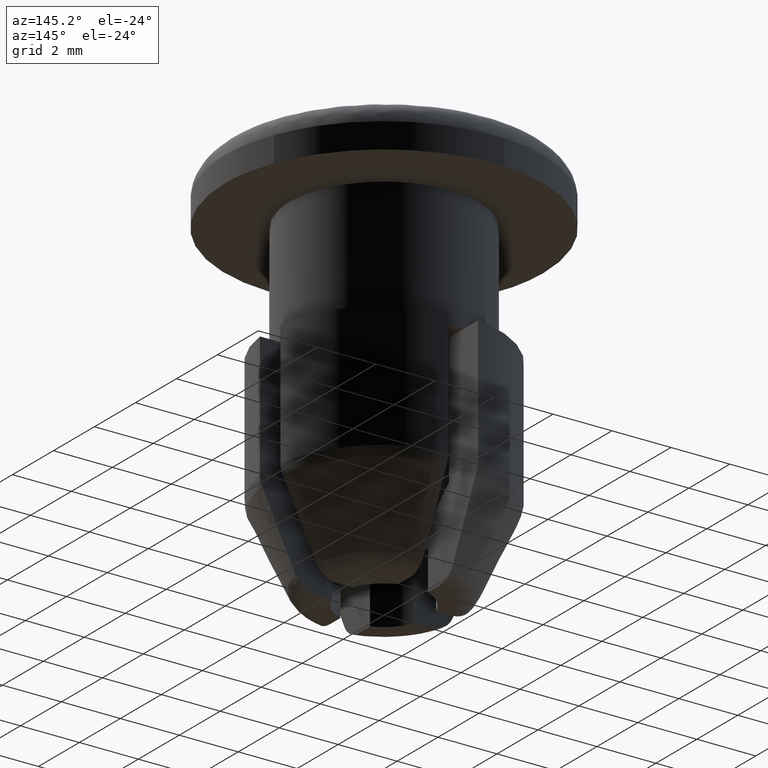
[diagram: clean part render]
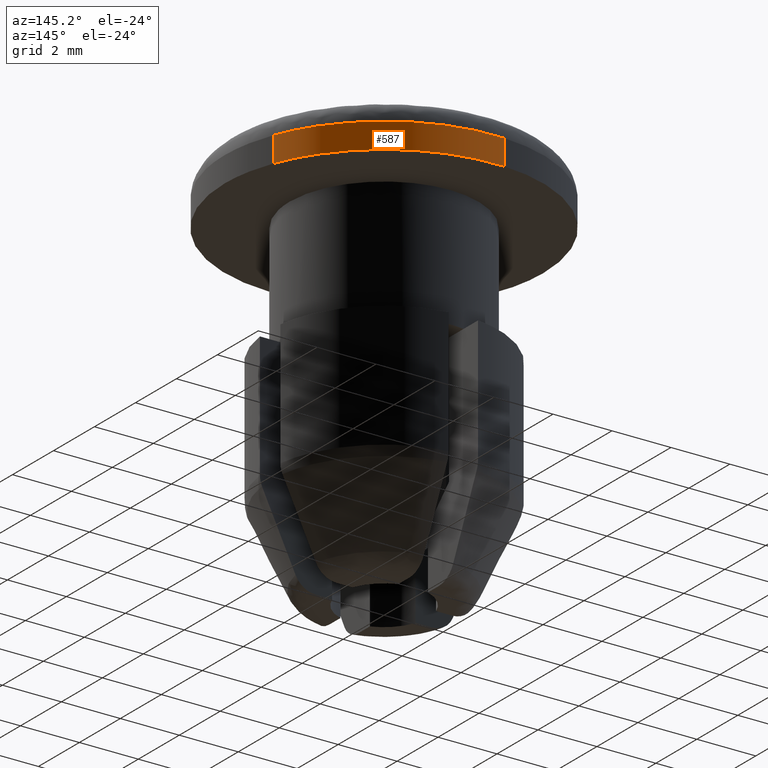
[diagram: same view with one face highlighted and labeled with its STEP entity id]
A machine part, auxiliary view. The second image highlights one B-rep face of the part: STEP entity #587.
In plain terms, the highlighted face is a freeform B-spline surface patch.
Its self-contained STEP definition (entity closure, byte-faithful):
#398=CARTESIAN_POINT('',(5.055175482556152,1.898736643287578,-2.000000000000003));
#399=VERTEX_POINT('',#398);
#415=CARTESIAN_POINT('',(5.055175480615818,1.898736648453501,-1.139000000000000));
#416=VERTEX_POINT('',#415);
#417=CARTESIAN_POINT('',(5.055175480615818,1.898736648453501,-1.139000000000000));
#418=CARTESIAN_POINT('',(5.055175482556152,1.898736643287578,-2.000000000000003));
#419=QUASI_UNIFORM_CURVE('',1,(#417,#418),.UNSPECIFIED.,.F.,.U.);
#420=EDGE_CURVE('',#416,#399,#419,.T.);
#484=CARTESIAN_POINT('',(-0.329657734720591,5.389928179291412,-1.139000000000000));
#485=VERTEX_POINT('',#484);
#499=CARTESIAN_POINT('',(-0.329657680015346,5.389928182637238,-2.000000000000011));
#500=VERTEX_POINT('',#499);
#501=CARTESIAN_POINT('',(-0.329657734720591,5.389928179291412,-1.139000000000000));
#502=CARTESIAN_POINT('',(-0.329657680015346,5.389928182637238,-2.000000000000011));
#503=QUASI_UNIFORM_CURVE('',1,(#501,#502),.UNSPECIFIED.,.F.,.U.);
#504=EDGE_CURVE('',#485,#500,#503,.T.);
#539=CARTESIAN_POINT('',(-0.329662113488225,5.389927911478081,-1.117474999979123));
#540=CARTESIAN_POINT('',(3.652395741736556,5.633481003494445,-1.117474999979123));
#541=CARTESIAN_POINT('',(5.055175325393949,1.898737061714487,-1.117474999979123));
#542=CARTESIAN_POINT('',(-0.329662113488225,5.389927911478081,-2.022063125000522));
#543=CARTESIAN_POINT('',(3.652395741736556,5.633481003494445,-2.022063125000522));
#544=CARTESIAN_POINT('',(5.055175325393949,1.898737061714487,-2.022063125000522));
#552=(BOUNDED_SURFACE()B_SPLINE_SURFACE(2,1,((#539,#542),(#540,#543),(#541,#544)),.UNSPECIFIED.,.F.,.F.,.U.)B_SPLINE_SURFACE_WITH_KNOTS((3,3),(2,2),(0.0,7.108823108987890),(0.0,1.0),.UNSPECIFIED.)GEOMETRIC_REPRESENTATION_ITEM()RATIONAL_B_SPLINE_SURFACE(((1.0,1.0),(0.765685424949238,0.765685424949238),(0.906274169979695,0.906274169979695)))REPRESENTATION_ITEM('')SURFACE());
#553=CARTESIAN_POINT('',(-0.329657680015346,5.389928182637238,-2.000000000000011));
#554=CARTESIAN_POINT('',(-0.164982698860566,5.400000000000000,-2.0));
#555=CARTESIAN_POINT('',(0.0,5.400000000000000,-2.0));
#556=CARTESIAN_POINT('',(3.740092478133132,5.400000000000000,-2.000000000000000));
#557=CARTESIAN_POINT('',(5.055175482556152,1.898736643287578,-2.000000000000003));
#565=(BOUNDED_CURVE()B_SPLINE_CURVE(2,(#553,#554,#555,#556,#557),.UNSPECIFIED.,.F.,.U.)B_SPLINE_CURVE_WITH_KNOTS((3,2,3),(0.239333104169951,0.250000000000000,0.440284197046564),.UNSPECIFIED.)CURVE()GEOMETRIC_REPRESENTATION_ITEM()RATIONAL_B_SPLINE_CURVE((0.976072345852074,0.987502954182356,1.0,0.777068196150795,0.893499586634294))REPRESENTATION_ITEM(''));
#566=EDGE_CURVE('',#500,#399,#565,.T.);
#567=ORIENTED_EDGE('',*,*,#566,.F.);
#568=ORIENTED_EDGE('',*,*,#504,.F.);
#569=CARTESIAN_POINT('',(-0.329657734720591,5.389928179291412,-1.139000000000000));
#570=CARTESIAN_POINT('',(-0.164982726289879,5.400000000000002,-1.139000000000000));
#571=CARTESIAN_POINT('',(0.0,5.400000000000000,-1.139000000000000));
#572=CARTESIAN_POINT('',(3.740092469967635,5.400000000000000,-1.139000000000000));
#573=CARTESIAN_POINT('',(5.055175480615819,1.898736648453500,-1.139000000000000));
#581=(BOUNDED_CURVE()B_SPLINE_CURVE(2,(#569,#570,#571,#572,#573),.UNSPECIFIED.,.F.,.U.)B_SPLINE_CURVE_WITH_KNOTS((3,2,3),(0.239333102418681,0.250000000000000,0.440284196723743),.UNSPECIFIED.)CURVE()GEOMETRIC_REPRESENTATION_ITEM()RATIONAL_B_SPLINE_CURVE((0.976072342098766,0.987502952130617,1.0,0.777068196529004,0.893499586239237))REPRESENTATION_ITEM(''));
#582=EDGE_CURVE('',#485,#416,#581,.T.);
#583=ORIENTED_EDGE('',*,*,#582,.T.);
#584=ORIENTED_EDGE('',*,*,#420,.T.);
#585=EDGE_LOOP('',(#567,#568,#583,#584));
#586=FACE_OUTER_BOUND('',#585,.T.);
#587=ADVANCED_FACE('',(#586),#552,.T.);